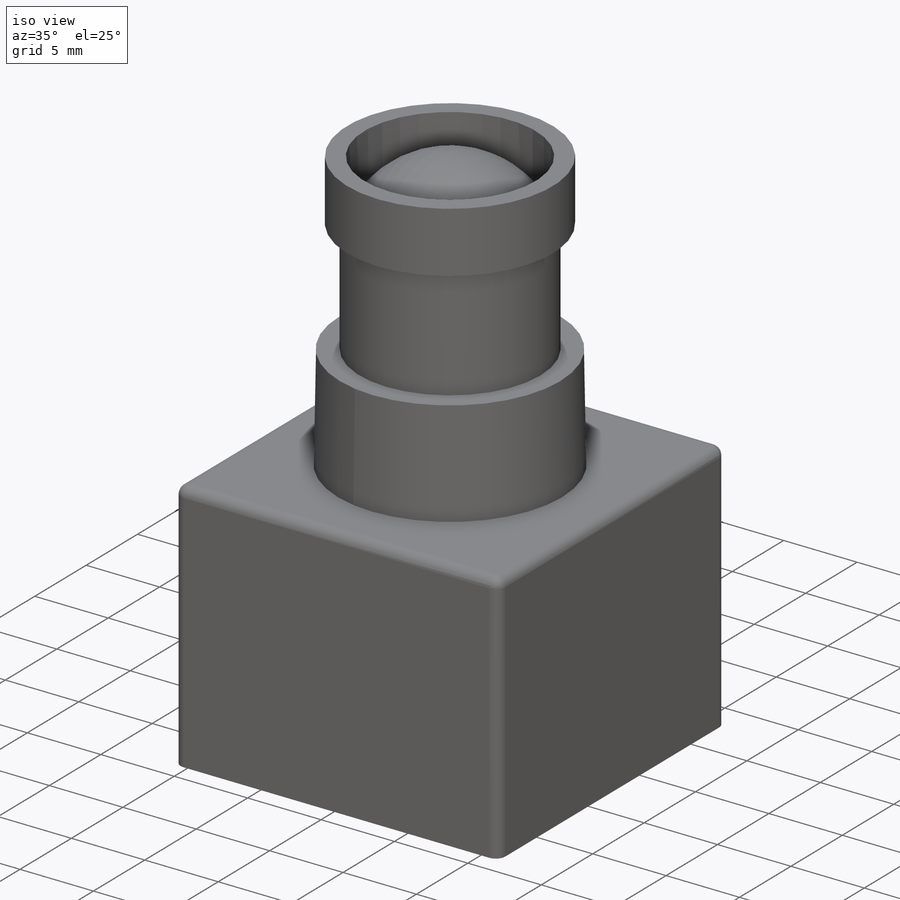
[diagram: iso view]
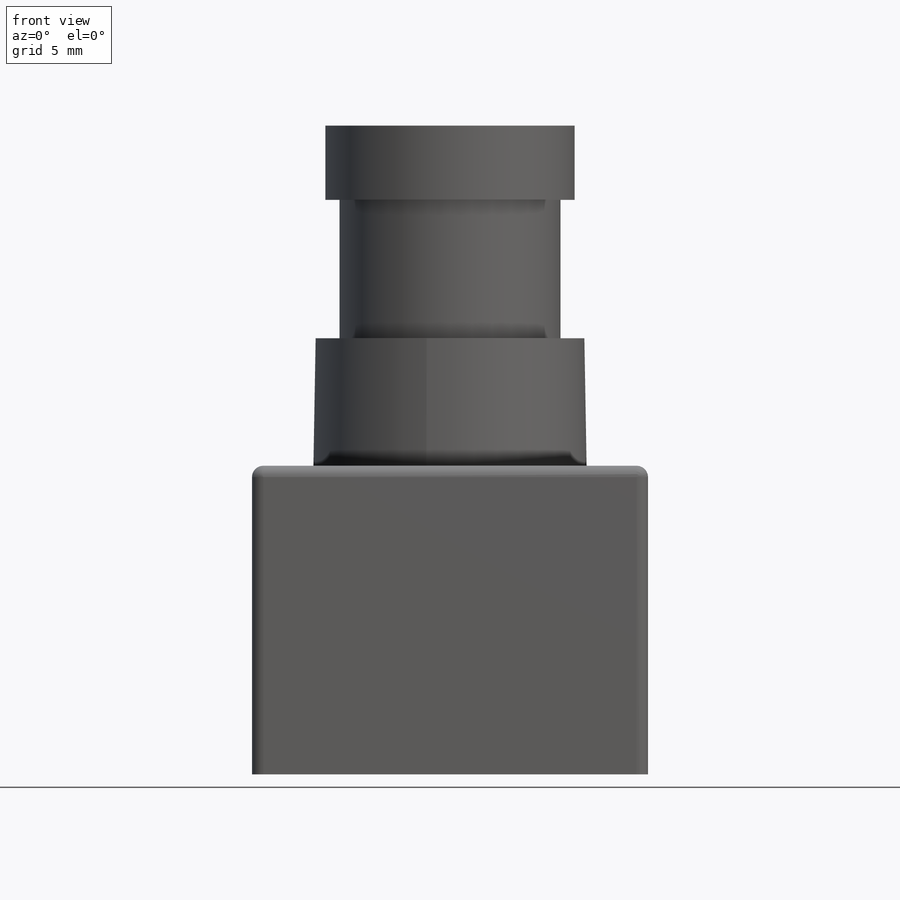
[diagram: front view]
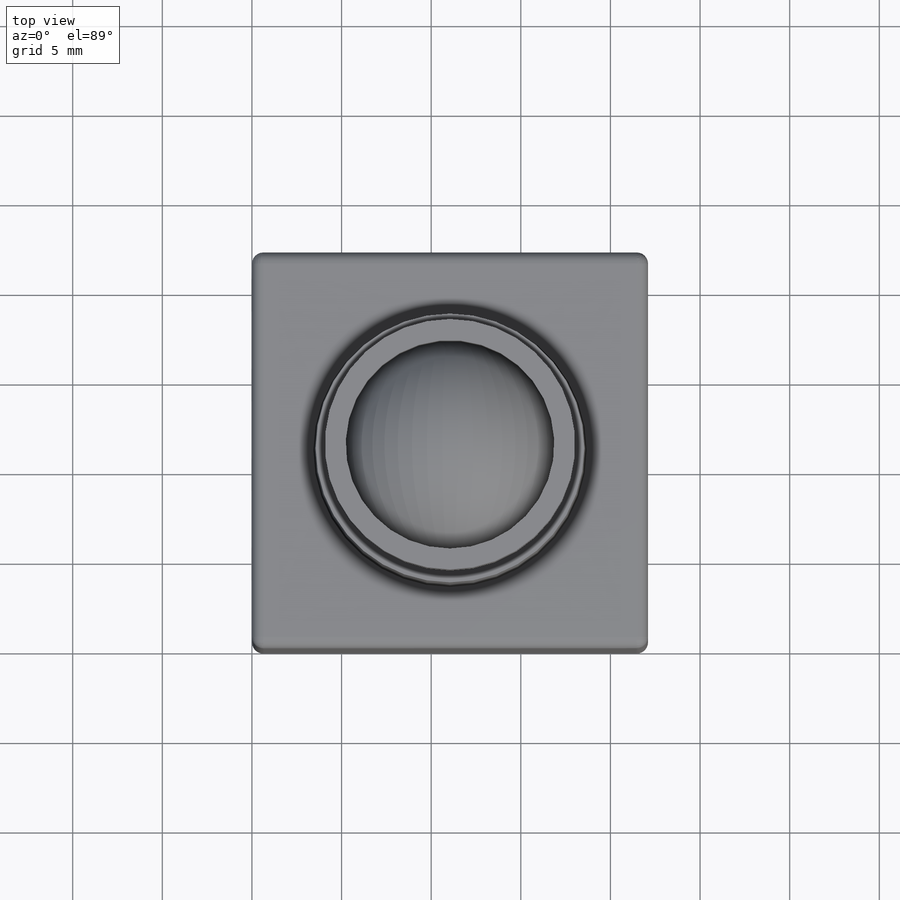
[diagram: top view]
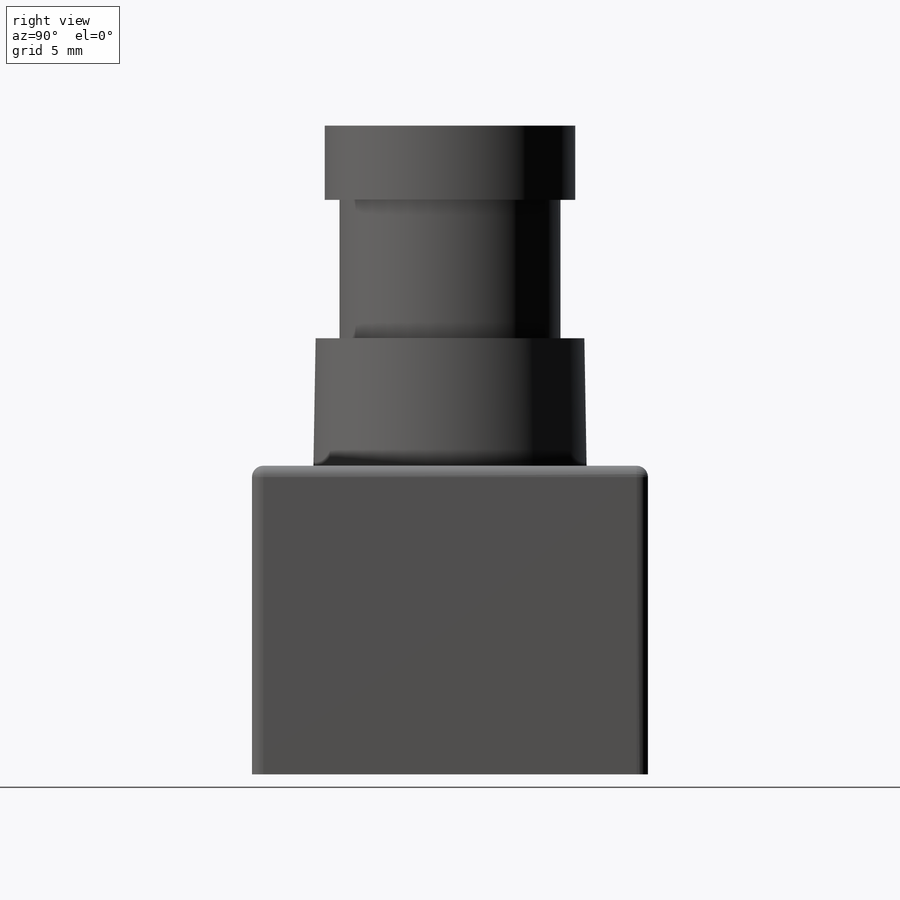
[diagram: right view]
SOLIDWORKS PART (.sldprt)
format: sldprt  version: not decoded by parser v0  size: 222,720 bytes
history: native  units: mm
features: sketch x5, extrude x4, plane x2, material x1, fillet x1, cut_extrude x1, dome x1 (+16 scaffold rows collapsed)
feature tree (31):
  scaffold x16  (default folders/planes/origin — collapsed)
  material  "Material <not specified>"
  sketch  "Sketch1"  dims[D1=22.098mm D2=22.098mm]
  extrude  "Extrude1"  Depth=17.2212mm
  fillet  "Fillet1"  Radius=0.635mm
  sketch  "Sketch2"  dims[D1=15.24mm]
  extrude  "Extrude2"  Depth=7.112mm
  sketch  "Sketch3"
  extrude  "Extrude3"  Depth=7.7216mm
  sketch  "Sketch4"  dims[D1=13.97mm]
  extrude  "Extrude4"  Depth=4.1402mm
  sketch  "Sketch5"
  cut_extrude  "Extrude5"  Depth=3.683mm
  dome  "Dome1"
  plane  "mid_1"
  plane  "mid_2"
decode coverage: 9 of 12 modeling features carry decoded parameters
note: suppression state not decoded; provenance and decode notes live in map.json
